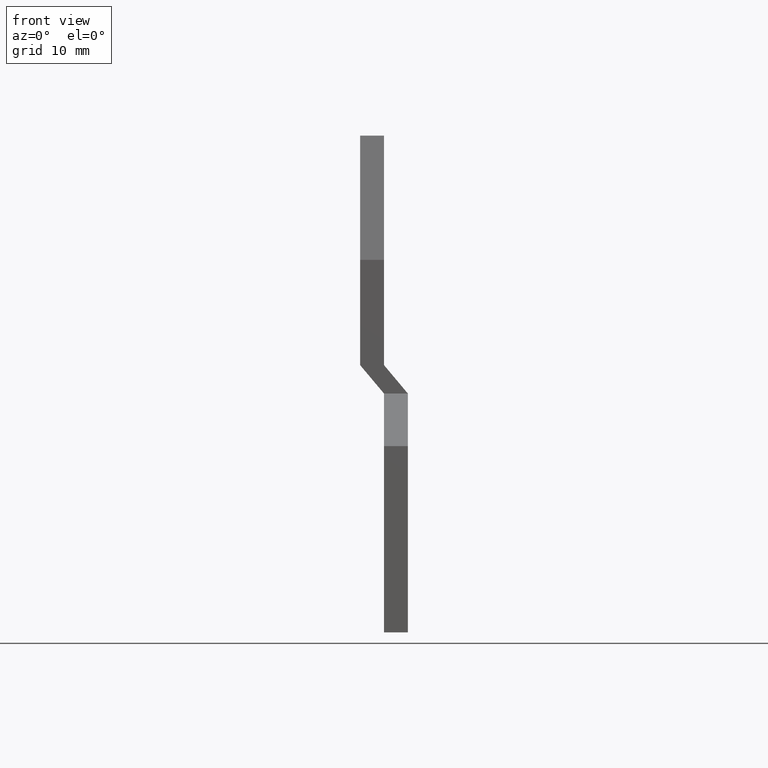
[diagram: clean part render]
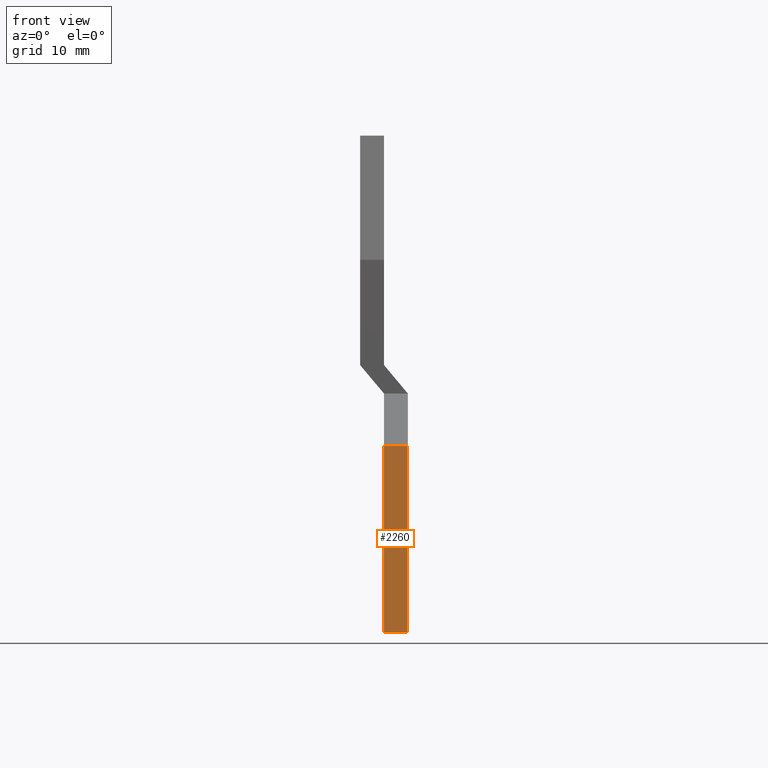
[diagram: same view with one face highlighted and labeled with its STEP entity id]
A machine part, front view. The second image highlights one B-rep face of the part: STEP entity #2260.
In plain terms, the highlighted planar face has unit normal (0, -1, -0).
Its self-contained STEP definition (entity closure, byte-faithful):
#1870=CARTESIAN_POINT('',(50.6626933469241,23.8926663308882,-2.5));
#1880=DIRECTION('',(1.,0.,0.));
#1890=DIRECTION('',(0.,-1.,0.));
#1900=AXIS2_PLACEMENT_3D('',#1870,#1880,#1890);
#1910=PLANE('',#1900);
#1920=CARTESIAN_POINT('',(50.6626933469241,26.1364093308882,-2.5));
#1930=DIRECTION('',(0.,0.,-1.));
#1940=VECTOR('',#1930,1.);
#1950=LINE('',#1920,#1940);
#1960=CARTESIAN_POINT('',(50.6626933469241,26.1364093308882,-2.5));
#1970=VERTEX_POINT('',#1960);
#1980=CARTESIAN_POINT('',(50.6626933469241,26.1364093308882,-5.));
#1990=VERTEX_POINT('',#1980);
#2000=EDGE_CURVE('',#1970,#1990,#1950,.T.);
#2010=ORIENTED_EDGE('',*,*,#2000,.F.);
#2020=CARTESIAN_POINT('',(50.6626933469241,0.00564033088821247,-5.));
#2030=DIRECTION('',(0.,-1.,0.));
#2040=VECTOR('',#2030,1.);
#2050=LINE('',#2020,#2040);
#2060=CARTESIAN_POINT('',(50.6626933469241,6.63640933088821,-5.));
#2070=VERTEX_POINT('',#2060);
#2080=EDGE_CURVE('',#1990,#2070,#2050,.T.);
#2090=ORIENTED_EDGE('',*,*,#2080,.F.);
#2100=CARTESIAN_POINT('',(50.6626933469241,6.63640933088821,
3.99680288865056E-15));
#2110=DIRECTION('',(0.,0.,1.));
#2120=VECTOR('',#2110,1.);
#2130=LINE('',#2100,#2120);
#2140=CARTESIAN_POINT('',(50.6626933469241,6.63640933088821,-2.5));
#2150=VERTEX_POINT('',#2140);
#2160=EDGE_CURVE('',#2070,#2150,#2130,.T.);
#2170=ORIENTED_EDGE('',*,*,#2160,.F.);
#2180=CARTESIAN_POINT('',(50.6626933469241,16.0566153308882,-2.5));
#2190=DIRECTION('',(0.,1.,0.));
#2200=VECTOR('',#2190,1.);
#2210=LINE('',#2180,#2200);
#2220=EDGE_CURVE('',#2150,#1970,#2210,.T.);
#2230=ORIENTED_EDGE('',*,*,#2220,.F.);
#2240=EDGE_LOOP('',(#2230,#2170,#2090,#2010));
#2250=FACE_OUTER_BOUND('',#2240,.T.);
#2260=ADVANCED_FACE('',(#2250),#1910,.T.);